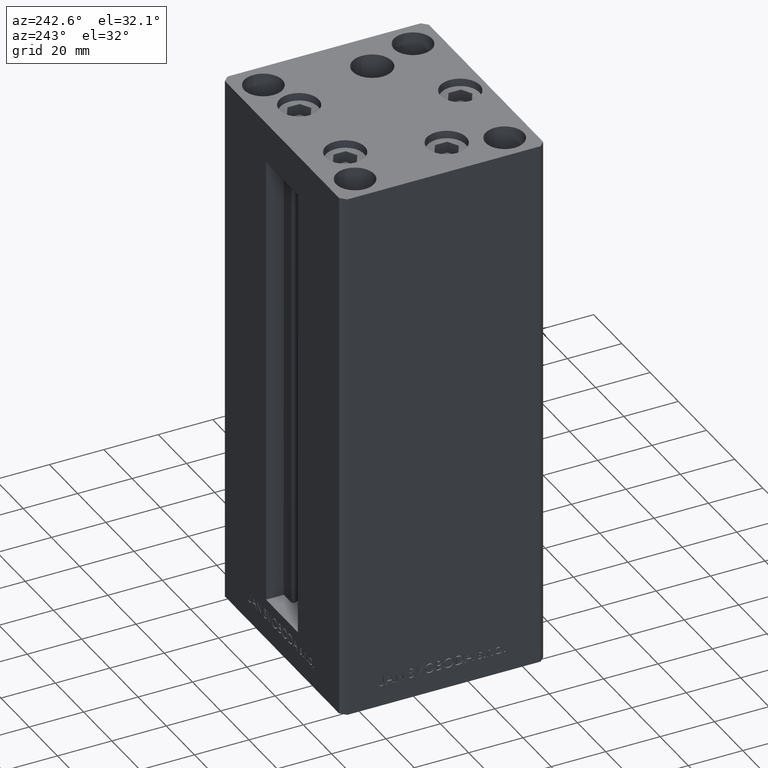
[diagram: clean part render]
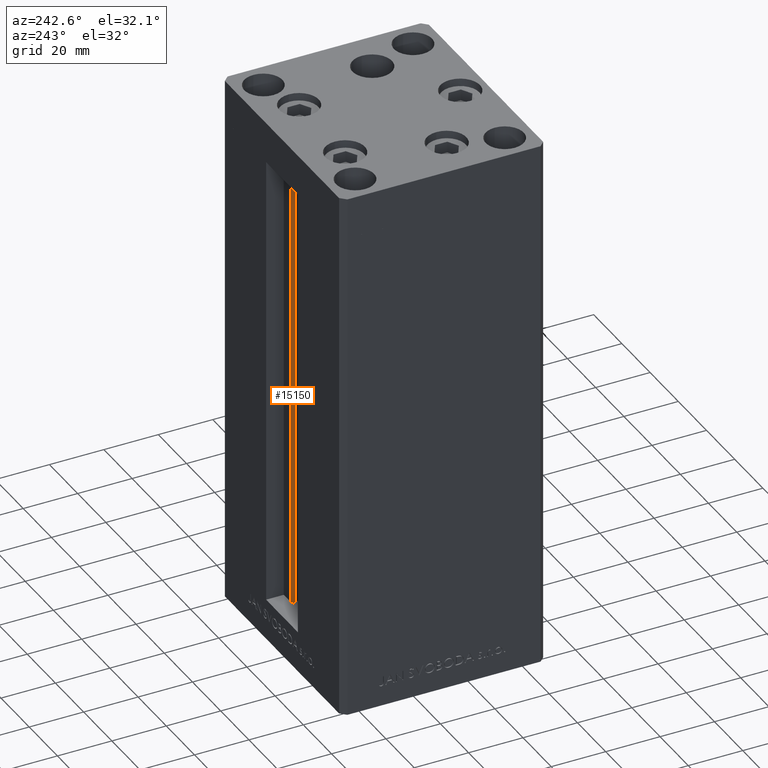
[diagram: same view with one face highlighted and labeled with its STEP entity id]
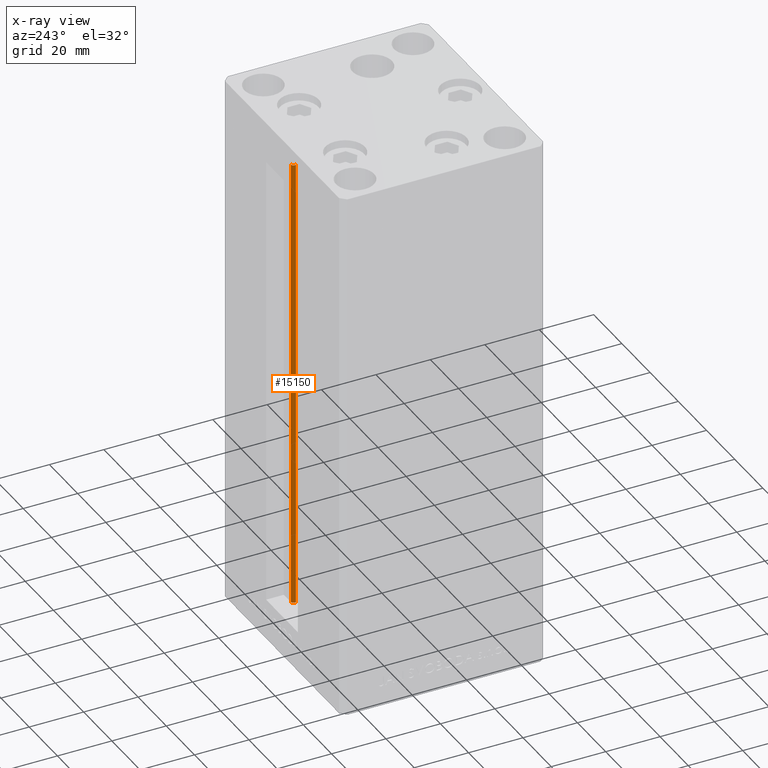
[diagram: x-ray of the same camera — body ghosted, the highlighted face saturated]
A machine part, auxiliary view. The second image highlights one B-rep face of the part: STEP entity #15150.
The next image is the same camera in x-ray: the body ghosted, the highlighted face saturated — about 0% of this face is hidden behind the body in this view.
In plain terms, the highlighted cylindrical surface (edge-blend (fillet) strip) has radius 0.9333 mm, axis along (0, 0, 1).
Its self-contained STEP definition (entity closure, byte-faithful):
#447 = DIRECTION ( 'NONE',  ( 0.000000000000000000, 0.000000000000000000, -1.000000000000000000 ) ) ;
#1664 = ORIENTED_EDGE ( 'NONE', *, *, #20975, .F. ) ;
#2497 = DIRECTION ( 'NONE',  ( 1.000000000000000000, 0.000000000000000000, 0.000000000000000000 ) ) ;
#4330 = AXIS2_PLACEMENT_3D ( 'NONE', #29390, #17682, #2497 ) ;
#7645 = CARTESIAN_POINT ( 'NONE',  ( 6.183333333333999704, 30.06666666666599141, 0.000000000000000000 ) ) ;
#7846 = VECTOR ( 'NONE', #22147, 1000.000000000000000 ) ;
#8872 = DIRECTION ( 'NONE',  ( -0.000000000000000000, -0.000000000000000000, 1.000000000000000000 ) ) ;
#8921 = VERTEX_POINT ( 'NONE', #49009 ) ;
#9590 = LINE ( 'NONE', #32013, #10862 ) ;
#10862 = VECTOR ( 'NONE', #16812, 1000.000000000000000 ) ;
#11246 = EDGE_CURVE ( 'NONE', #32535, #28997, #38642, .T. ) ;
#11387 = FACE_OUTER_BOUND ( 'NONE', #25642, .T. ) ;
#11517 = CIRCLE ( 'NONE', #32968, 0.9333333333340015914 ) ;
#12712 = EDGE_CURVE ( 'NONE', #17551, #8921, #11517, .T. ) ;
#13684 = LINE ( 'NONE', #36844, #7846 ) ;
#14290 = ORIENTED_EDGE ( 'NONE', *, *, #11246, .F. ) ;
#15150 = ADVANCED_FACE ( 'NONE', ( #11387 ), #26578, .T. ) ;
#16812 = DIRECTION ( 'NONE',  ( -0.000000000000000000, -0.000000000000000000, 1.000000000000000000 ) ) ;
#17445 = EDGE_CURVE ( 'NONE', #32535, #17551, #9590, .T. ) ;
#17551 = VERTEX_POINT ( 'NONE', #44184 ) ;
#17682 = DIRECTION ( 'NONE',  ( -0.000000000000000000, -0.000000000000000000, -1.000000000000000000 ) ) ;
#20975 = EDGE_CURVE ( 'NONE', #28997, #8921, #13684, .T. ) ;
#21145 = AXIS2_PLACEMENT_3D ( 'NONE', #7645, #8872, #39739 ) ;
#22147 = DIRECTION ( 'NONE',  ( -0.000000000000000000, -0.000000000000000000, 1.000000000000000000 ) ) ;
#22192 = CARTESIAN_POINT ( 'NONE',  ( 6.183333333333999704, 30.99999999999999289, 0.000000000000000000 ) ) ;
#22858 = ORIENTED_EDGE ( 'NONE', *, *, #12712, .T. ) ;
#25642 = EDGE_LOOP ( 'NONE', ( #1664, #14290, #44034, #22858 ) ) ;
#26578 = CYLINDRICAL_SURFACE ( 'NONE', #21145, 0.9333333333340015914 ) ;
#28997 = VERTEX_POINT ( 'NONE', #22192 ) ;
#29390 = CARTESIAN_POINT ( 'NONE',  ( 6.183333333333999704, 30.06666666666599141, 0.000000000000000000 ) ) ;
#32013 = CARTESIAN_POINT ( 'NONE',  ( 5.375042956467943611, 29.59999999999899245, 0.000000000000000000 ) ) ;
#32535 = VERTEX_POINT ( 'NONE', #42162 ) ;
#32968 = AXIS2_PLACEMENT_3D ( 'NONE', #49280, #447, #42038 ) ;
#36844 = CARTESIAN_POINT ( 'NONE',  ( 6.183333333333999704, 30.99999999999999289, 0.000000000000000000 ) ) ;
#38642 = CIRCLE ( 'NONE', #4330, 0.9333333333340015914 ) ;
#39739 = DIRECTION ( 'NONE',  ( 1.000000000000000000, 0.000000000000000000, 0.000000000000000000 ) ) ;
#42038 = DIRECTION ( 'NONE',  ( 1.000000000000000000, 0.000000000000000000, 0.000000000000000000 ) ) ;
#42162 = CARTESIAN_POINT ( 'NONE',  ( 5.375042956467943611, 29.59999999999899245, 0.000000000000000000 ) ) ;
#44034 = ORIENTED_EDGE ( 'NONE', *, *, #17445, .T. ) ;
#44184 = CARTESIAN_POINT ( 'NONE',  ( 5.375042956467944499, 29.59999999999898890, 168.5000000000000000 ) ) ;
#49009 = CARTESIAN_POINT ( 'NONE',  ( 6.183333333333999704, 30.99999999999999289, 168.5000000000000000 ) ) ;
#49280 = CARTESIAN_POINT ( 'NONE',  ( 6.183333333333999704, 30.06666666666599141, 168.5000000000000000 ) ) ;